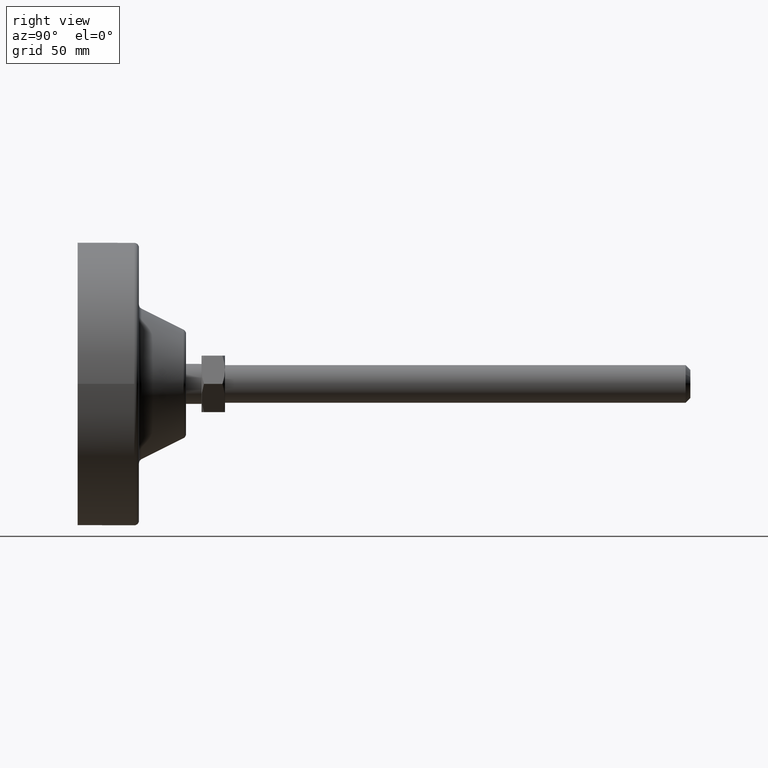
[diagram: clean part render]
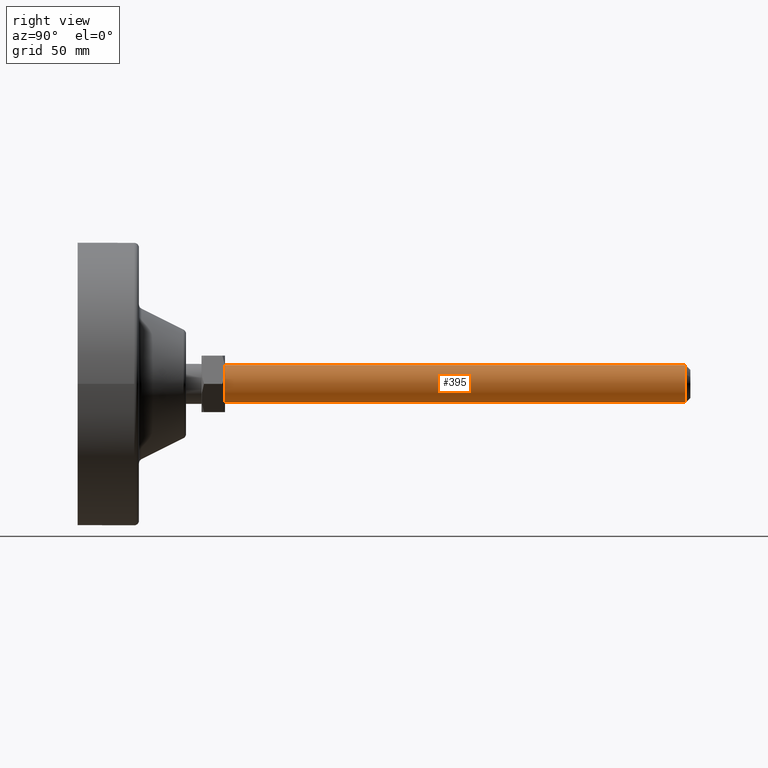
[diagram: same view with one face highlighted and labeled with its STEP entity id]
A machine part, right view. The second image highlights one B-rep face of the part: STEP entity #395.
In plain terms, the highlighted cylindrical surface (bore or boss wall) has radius 8 mm, axis along (-0, -1, 0).
Its self-contained STEP definition (entity closure, byte-faithful):
#46=CYLINDRICAL_SURFACE('',#502,8.);
#67=LINE('',#748,#80);
#80=VECTOR('',#597,8.);
#105=FACE_OUTER_BOUND('',#131,.T.);
#131=EDGE_LOOP('',(#313,#314,#315,#316,#317));
#163=CIRCLE('',#498,8.);
#164=CIRCLE('',#499,8.);
#166=CIRCLE('',#503,8.);
#187=VERTEX_POINT('',#737);
#188=VERTEX_POINT('',#738);
#190=VERTEX_POINT('',#746);
#232=EDGE_CURVE('',#187,#188,#163,.T.);
#233=EDGE_CURVE('',#188,#187,#164,.T.);
#236=EDGE_CURVE('',#190,#190,#166,.T.);
#237=EDGE_CURVE('',#190,#188,#67,.T.);
#313=ORIENTED_EDGE('',*,*,#236,.T.);
#314=ORIENTED_EDGE('',*,*,#237,.T.);
#315=ORIENTED_EDGE('',*,*,#232,.F.);
#316=ORIENTED_EDGE('',*,*,#233,.F.);
#317=ORIENTED_EDGE('',*,*,#237,.F.);
#395=ADVANCED_FACE('',(#105),#46,.T.);
#498=AXIS2_PLACEMENT_3D('',#739,#584,#585);
#499=AXIS2_PLACEMENT_3D('',#740,#586,#587);
#502=AXIS2_PLACEMENT_3D('',#745,#593,#594);
#503=AXIS2_PLACEMENT_3D('',#747,#595,#596);
#584=DIRECTION('center_axis',(0.,1.,0.));
#585=DIRECTION('ref_axis',(-1.,0.,0.));
#586=DIRECTION('center_axis',(0.,1.,0.));
#587=DIRECTION('ref_axis',(-1.,0.,0.));
#593=DIRECTION('center_axis',(0.,-1.,0.));
#594=DIRECTION('ref_axis',(1.,0.,0.));
#595=DIRECTION('center_axis',(0.,1.,0.));
#596=DIRECTION('ref_axis',(1.,0.,0.));
#597=DIRECTION('',(0.,1.,0.));
#737=CARTESIAN_POINT('',(8.,179.1,-9.79717439317883E-16));
#738=CARTESIAN_POINT('',(-8.,179.1,-9.79717439317883E-16));
#739=CARTESIAN_POINT('Origin',(0.,179.1,0.));
#740=CARTESIAN_POINT('Origin',(0.,179.1,0.));
#745=CARTESIAN_POINT('Origin',(0.,61.3975,0.));
#746=CARTESIAN_POINT('',(-8.,-16.3755,9.79685083057902E-16));
#747=CARTESIAN_POINT('Origin',(0.,-16.3755,0.));
#748=CARTESIAN_POINT('',(-8.,61.3975,-9.79717439317883E-16));